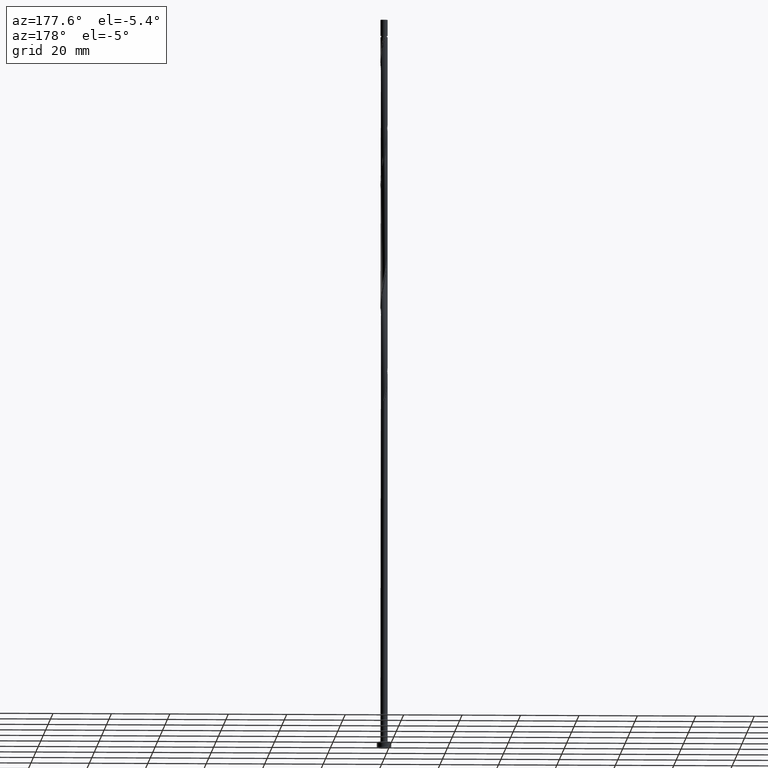
[diagram: clean part render]
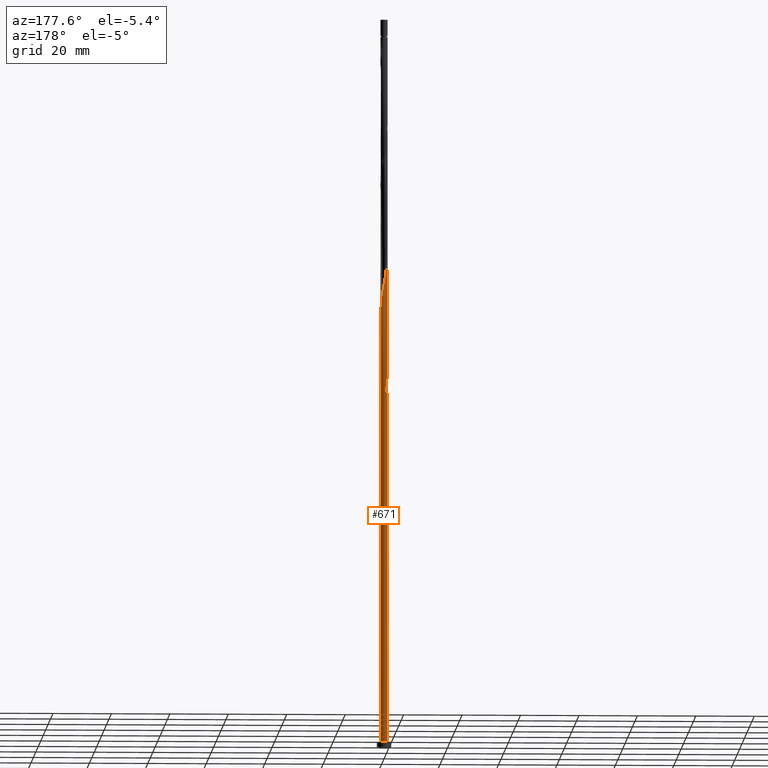
[diagram: same view with one face highlighted and labeled with its STEP entity id]
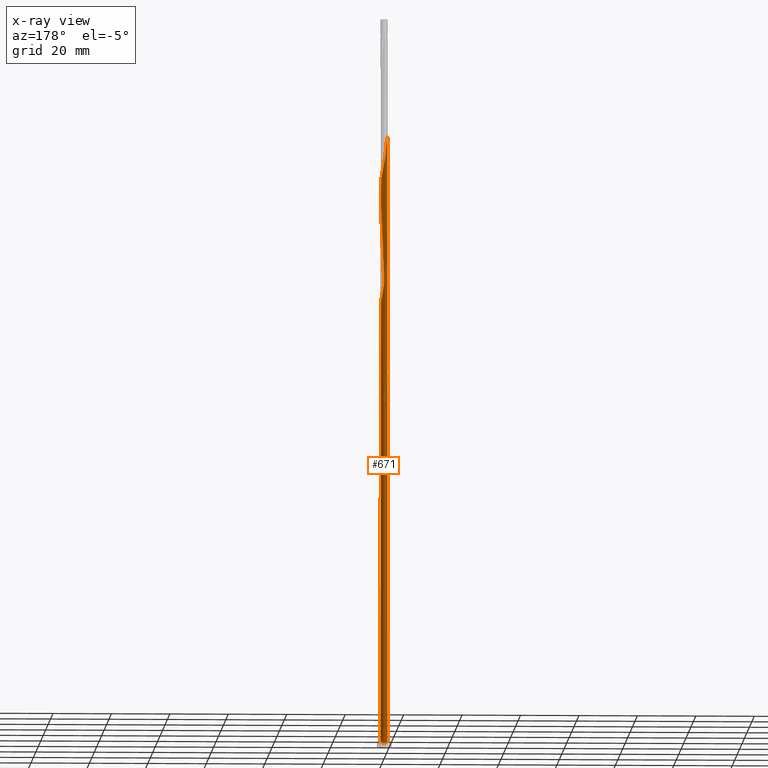
[diagram: x-ray of the same camera — body ghosted, the highlighted face saturated]
A machine part, auxiliary view. The second image highlights one B-rep face of the part: STEP entity #671.
The next image is the same camera in x-ray: the body ghosted, the highlighted face saturated — about 0% of this face is hidden behind the body in this view.
In plain terms, the highlighted cylindrical surface (bore or boss wall) has radius 1.25 mm, axis along (-0, -0, -1).
Its self-contained STEP definition (entity closure, byte-faithful):
#8 = CARTESIAN_POINT ( 'NONE',  ( 1.209097744789172868, -0.3515950037838740383, 188.7788032454643883 ) ) ;
#14 = ORIENTED_EDGE ( 'NONE', *, *, #330, .F. ) ;
#17 = CARTESIAN_POINT ( 'NONE',  ( -0.5346804163773583030, 1.129874706479677471, 204.0031622198233094 ) ) ;
#26 = CARTESIAN_POINT ( 'NONE',  ( -1.149459557334894466, 0.4911646628692577510, 208.8108545275156303 ) ) ;
#34 = CARTESIAN_POINT ( 'NONE',  ( 0.7895402911624437303, -0.9690852019462100619, 143.1057263223874259 ) ) ;
#39 = CARTESIAN_POINT ( 'NONE',  ( 1.258105753662064119, -0.05202226198902464710, 190.3813673480285047 ) ) ;
#54 = EDGE_CURVE ( 'NONE', #996, #1596, #886, .T. ) ;
#62 = CARTESIAN_POINT ( 'NONE',  ( 0.5346804163773579699, -1.129874706479677915, 183.1698288864900519 ) ) ;
#74 = CARTESIAN_POINT ( 'NONE',  ( 0.2032908520837055921, 1.242662155454621997, 158.3300852967464323 ) ) ;
#86 = CARTESIAN_POINT ( 'NONE',  ( 1.186085250128970925, 0.3945906479207273998, 151.1185468352079511 ) ) ;
#91 = CARTESIAN_POINT ( 'NONE',  ( -0.7574990085993095201, 1.005848723770680131, 124.6762391429003145 ) ) ;
#94 = CARTESIAN_POINT ( 'NONE',  ( -1.209097744789172868, 0.3515950037838733166, 167.9454699121311023 ) ) ;
#96 = CARTESIAN_POINT ( 'NONE',  ( 0.000000000000000000, 0.000000000000000000, 2.000000000000000000 ) ) ;
#104 = CARTESIAN_POINT ( 'NONE',  ( 0.2487468592766569064, -1.225000000000000755, 181.5672647839259639 ) ) ;
#124 = CARTESIAN_POINT ( 'NONE',  ( 0.9072085382940975329, -0.8732176539593852205, 185.5736750403362407 ) ) ;
#136 = CARTESIAN_POINT ( 'NONE',  ( -1.186085250128970925, -0.3945906479207278994, 130.2852135018746367 ) ) ;
#152 = CARTESIAN_POINT ( 'NONE',  ( -1.209097744789172868, 0.3515950037838733166, 209.6121365787977595 ) ) ;
#170 = CARTESIAN_POINT ( 'NONE',  ( -1.250000000000001332, 1.301166652395880232E-15, 128.1560095747007040 ) ) ;
#183 = CARTESIAN_POINT ( 'NONE',  ( -1.209097744789172868, 0.3515950037838733166, 126.2788032454643883 ) ) ;
#185 = AXIS2_PLACEMENT_3D ( 'NONE', #1639, #1659, #213 ) ;
#190 = CARTESIAN_POINT ( 'NONE',  ( -0.5346804163773583030, 1.129874706479677471, 120.6698288864900377 ) ) ;
#200 = CARTESIAN_POINT ( 'NONE',  ( -1.057188045353649741, -0.6669733403677636785, 173.5544442711054103 ) ) ;
#209 = CARTESIAN_POINT ( 'NONE',  ( 0.6261355586025928455, 1.081875345062185190, 155.9262391429002435 ) ) ;
#210 = CIRCLE ( 'NONE', #1312, 1.250000000000000000 ) ;
#213 = DIRECTION ( 'NONE',  ( -1.000000000000000000, 0.000000000000000000, 0.000000000000000000 ) ) ;
#223 = CARTESIAN_POINT ( 'NONE',  ( -0.6261355586025916242, 1.081875345062184746, 123.8749570916182705 ) ) ;
#225 = CARTESIAN_POINT ( 'NONE',  ( -0.6261355586025928455, -1.081875345062185190, 176.7595724762336147 ) ) ;
#230 = CARTESIAN_POINT ( 'NONE',  ( -0.8668509141045642741, 0.9005939666220742490, 125.4775211941824011 ) ) ;
#233 = CARTESIAN_POINT ( 'NONE',  ( 0.9985149540873566876, -0.7519759879570139249, 144.7082904249515707 ) ) ;
#241 = LINE ( 'NONE', #1164, #477 ) ;
#242 = CARTESIAN_POINT ( 'NONE',  ( -1.250000000000001332, 7.178850495977267118E-16, 211.4893429080340184 ) ) ;
#248 = DIRECTION ( 'NONE',  ( -0.000000000000000000, -0.000000000000000000, -1.000000000000000000 ) ) ;
#268 = CARTESIAN_POINT ( 'NONE',  ( -1.057188045353649741, -0.6669733403677636785, 131.8877776044387531 ) ) ;
#277 = VERTEX_POINT ( 'NONE', #977 ) ;
#280 =( BOUNDED_CURVE ( )  B_SPLINE_CURVE ( 2, ( #567, #915, #190, #309, #1465, #1084, #833, #1618, #282, #183, #699, #686, #170 ),
 .UNSPECIFIED., .F., .T. ) 
 B_SPLINE_CURVE_WITH_KNOTS ( ( 3, 2, 2, 2, 2, 2, 3 ),
 ( 0.000000000000000000, 0.009615384615384582959, 0.01923076923076927347, 0.02884615384615385469, 0.03846153846153842898, 0.04807692307692312816, 0.05452716259738321636 ),
 .UNSPECIFIED. ) 
 CURVE ( )  GEOMETRIC_REPRESENTATION_ITEM ( )  RATIONAL_B_SPLINE_CURVE ( ( 0.9090909090909714552, 0.9024626128164744410, 0.9090909090909714552, 0.9024626128164744410, 0.9090909090909714552, 0.9024626128164744410, 0.9090909090909714552, 0.9024626128164744410, 0.9090909090909714552, 0.9024626128164744410, 0.9090909090909714552, 0.9046444828383313208, 0.9061636035683259260 ) ) 
 REPRESENTATION_ITEM ( '' )  );
#282 = CARTESIAN_POINT ( 'NONE',  ( -1.149459557334894466, 0.4911646628692577510, 125.4775211941823443 ) ) ;
#292 = CARTESIAN_POINT ( 'NONE',  ( -1.089821369880616730, 0.6307343219546426294, 208.0095724762336431 ) ) ;
#309 = CARTESIAN_POINT ( 'NONE',  ( -0.6718720440307903718, 1.064952749933035570, 121.4711109377721101 ) ) ;
#321 = CARTESIAN_POINT ( 'NONE',  ( -0.7574990085993109634, -1.005848723770680797, 175.9582904249516560 ) ) ;
#329 = CARTESIAN_POINT ( 'NONE',  ( 0.9762028196098204713, 0.7953392094734685891, 153.5223929890541683 ) ) ;
#330 = EDGE_CURVE ( 'NONE', #1596, #277, #241, .T. ) ;
#347 = CARTESIAN_POINT ( 'NONE',  ( -1.258105753662064119, 0.05202226198902477200, 169.5480340146952472 ) ) ;
#357 = CARTESIAN_POINT ( 'NONE',  ( 1.233997229160462394, 0.2505738245793974750, 150.3172647839259639 ) ) ;
#373 = LINE ( 'NONE', #904, #674 ) ;
#401 = CARTESIAN_POINT ( 'NONE',  ( -0.3490314803447900349, -1.200282060904155790, 136.6954699121310739 ) ) ;
#444 = ORIENTED_EDGE ( 'NONE', *, *, #1436, .F. ) ;
#445 = CARTESIAN_POINT ( 'NONE',  ( -0.9072085382940975329, 0.8732176539593852205, 206.4070083736695551 ) ) ;
#456 = CIRCLE ( 'NONE', #868, 1.250000000000000000 ) ;
#458 = CYLINDRICAL_SURFACE ( 'NONE', #185, 1.250000000000000000 ) ;
#475 = CARTESIAN_POINT ( 'NONE',  ( -1.186085250128970925, -0.3945906479207278994, 171.9518801685413791 ) ) ;
#477 = VECTOR ( 'NONE', #1580, 1000.000000000000000 ) ;
#481 = CARTESIAN_POINT ( 'NONE',  ( -0.3490314803447894243, 1.200282060904154902, 122.2723929890541967 ) ) ;
#483 = CARTESIAN_POINT ( 'NONE',  ( 1.258105753662064119, -0.05202226198902464710, 148.7147006813618191 ) ) ;
#493 = CARTESIAN_POINT ( 'NONE',  ( -0.8668509141045653843, -0.9005939666220746931, 175.1570083736694983 ) ) ;
#509 = CARTESIAN_POINT ( 'NONE',  ( -1.246051491411263479, -0.09927578129518627170, 128.6826493993105203 ) ) ;
#515 = CARTESIAN_POINT ( 'NONE',  ( -1.186085250128969593, 0.3945906479207281214, 128.6826493993105771 ) ) ;
#535 = CARTESIAN_POINT ( 'NONE',  ( -1.250000000000001332, 1.301166652395880232E-15, 128.1560095747007040 ) ) ;
#545 = CARTESIAN_POINT ( 'NONE',  ( 0.6261355586025928455, 1.081875345062185190, 197.5929058095669575 ) ) ;
#565 = CARTESIAN_POINT ( 'NONE',  ( -1.250000000000001554, 0.1015705481713052860, 210.9496421706857348 ) ) ;
#567 = CARTESIAN_POINT ( 'NONE',  ( -0.2487468592766567677, 1.225000000000000755, 119.0672647839259639 ) ) ;
#569 = CARTESIAN_POINT ( 'NONE',  ( 0.9072085382940975329, -0.8732176539593852205, 143.9070083736695835 ) ) ;
#573 = CARTESIAN_POINT ( 'NONE',  ( 0.3490314803447906455, 1.200282060904155568, 199.1954699121310455 ) ) ;
#590 = CARTESIAN_POINT ( 'NONE',  ( -0.6718720440307903718, 1.064952749933035570, 163.1377776044387531 ) ) ;
#600 = CARTESIAN_POINT ( 'NONE',  ( 0.3490314803447906455, 1.200282060904155568, 157.5288032454643883 ) ) ;
#607 = CARTESIAN_POINT ( 'NONE',  ( 0.7574990085993114075, 1.005848723770680131, 155.1249570916182847 ) ) ;
#609 = CARTESIAN_POINT ( 'NONE',  ( -1.250000000000000000, 0.000000000000000000, 2.000000000000000000 ) ) ;
#612 = CARTESIAN_POINT ( 'NONE',  ( -0.4947721086058738393, 1.157901966353689138, 123.0736750403362123 ) ) ;
#617 = CARTESIAN_POINT ( 'NONE',  ( -0.4947721086058747275, -1.157901966353690248, 177.5608545275156587 ) ) ;
#639 = CARTESIAN_POINT ( 'NONE',  ( -1.250000000000001554, -0.04971641292096036502, 128.4201804903336495 ) ) ;
#663 = CARTESIAN_POINT ( 'NONE',  ( -0.7574990085993109634, -1.005848723770680797, 134.2916237582849703 ) ) ;
#668 = CARTESIAN_POINT ( 'NONE',  ( -1.233601749225618605, 0.2018086328864491519, 210.4134186300798035 ) ) ;
#671 = ADVANCED_FACE ( 'NONE', ( #1273 ), #458, .T. ) ;
#674 = VECTOR ( 'NONE', #248, 1000.000000000000000 ) ;
#677 = CARTESIAN_POINT ( 'NONE',  ( 1.233601749225618605, -0.2018086328864492629, 189.5800852967464039 ) ) ;
#684 = CARTESIAN_POINT ( 'NONE',  ( 1.246051491411263479, 0.09927578129518584149, 191.1826493993105487 ) ) ;
#686 = CARTESIAN_POINT ( 'NONE',  ( -1.250000000000001332, 0.1015705481713070207, 127.6163088373523777 ) ) ;
#694 = CARTESIAN_POINT ( 'NONE',  ( 0.5346804163773579699, -1.129874706479677915, 141.5031622198233379 ) ) ;
#699 = CARTESIAN_POINT ( 'NONE',  ( -1.233601749225618605, 0.2018086328864491519, 127.0800852967464607 ) ) ;
#737 = CARTESIAN_POINT ( 'NONE',  ( 1.138173271097479677, 0.5386074712620585458, 151.9198288864900803 ) ) ;
#738 = VERTEX_POINT ( 'NONE', #609 ) ;
#746 = CARTESIAN_POINT ( 'NONE',  ( 0.4947721086058747275, 1.157901966353690248, 156.7275211941823727 ) ) ;
#749 = ORIENTED_EDGE ( 'NONE', *, *, #1478, .T. ) ;
#755 = CARTESIAN_POINT ( 'NONE',  ( -0.2032908520837054811, -1.242662155454621997, 179.1634186300798035 ) ) ;
#791 = CARTESIAN_POINT ( 'NONE',  ( -0.9762028196098199162, -0.7953392094734692552, 132.6890596557207971 ) ) ;
#807 = CARTESIAN_POINT ( 'NONE',  ( 1.233997229160462394, 0.2505738245793974750, 191.9839314505926495 ) ) ;
#813 = ORIENTED_EDGE ( 'NONE', *, *, #948, .T. ) ;
#827 = CARTESIAN_POINT ( 'NONE',  ( 0.2487468592766569064, -1.225000000000000755, 139.9005981172592499 ) ) ;
#831 = CARTESIAN_POINT ( 'NONE',  ( 1.149459557334894466, -0.4911646628692577510, 187.9775211941823443 ) ) ;
#833 = CARTESIAN_POINT ( 'NONE',  ( -0.9985149540873569096, 0.7519759879570138139, 123.8749570916182705 ) ) ;
#840 = CARTESIAN_POINT ( 'NONE',  ( 0.8668509141045653843, 0.9005939666220745821, 195.9903417070028695 ) ) ;
#858 = CARTESIAN_POINT ( 'NONE',  ( 1.057188045353649519, 0.6669733403677640116, 152.7211109377720675 ) ) ;
#868 = AXIS2_PLACEMENT_3D ( 'NONE', #1536, #1698, #1001 ) ;
#869 = CARTESIAN_POINT ( 'NONE',  ( 1.246051491411263479, 0.09927578129518584149, 149.5159827326439199 ) ) ;
#879 = CARTESIAN_POINT ( 'NONE',  ( -1.233997229160462394, -0.2505738245793976415, 171.1505981172592499 ) ) ;
#886 =( BOUNDED_CURVE ( )  B_SPLINE_CURVE ( 2, ( #535, #639, #509, #1568, #136, #1187, #268, #791, #1322, #663, #1195, #1719, #401, #931, #1351, #1219, #827, #1355, #694, #1226, #34, #569, #233, #1013, #1150, #1675, #1263, #483, #869, #357, #86, #737, #858, #329, #1122, #607, #209, #746, #600, #74, #1270, #1141, #1286, #1530, #1131, #590, #1278, #1666, #981, #1656, #1510, #94, #1004, #347, #1500, #879, #475, #888, #200, #1409, #493, #321, #225, #617, #1539, #755, #1382, #1113, #104, #1250, #62, #1647, #1394, #124, #1450, #1490, #831, #8, #677, #39, #684, #807, #1336, #1222, #944, #1480, #840, #1359, #545, #1209, #573, #1216, #1099, #953, #1625, #1608, #17, #1082, #1347, #445, #1067, #292, #26, #152, #668, #565, #1090 ),
 .UNSPECIFIED., .F., .T. ) 
 B_SPLINE_CURVE_WITH_KNOTS ( ( 3, 2, 2, 2, 2, 2, 2, 2, 2, 2, 2, 2, 2, 2, 2, 2, 2, 2, 2, 2, 2, 2, 2, 2, 2, 2, 2, 2, 2, 2, 2, 2, 2, 2, 2, 2, 2, 2, 2, 2, 2, 2, 2, 2, 2, 2, 2, 2, 2, 2, 2, 2, 2, 3 ),
 ( 0.05452716259738321636, 0.05769230769230770939, 0.06730769230769229061, 0.07692307692307687184, 0.08653846153846156408, 0.09615384615384614531, 0.1057692307692307265, 0.1153846153846154188, 0.1250000000000000000, 0.1346153846153845812, 0.1442307692307692735, 0.1538461538461538547, 0.1634615384615384359, 0.1730769230769231282, 0.1826923076923077094, 0.1923076923076922906, 0.2019230769230768718, 0.2115384615384615641, 0.2211538461538461453, 0.2307692307692307265, 0.2403846153846154188, 0.2500000000000000000, 0.2596153846153845812, 0.2692307692307692735, 0.2788461538461538547, 0.2884615384615384359, 0.2980769230769231282, 0.3076923076923077094, 0.3173076923076922906, 0.3269230769230768718, 0.3365384615384615641, 0.3461538461538461453, 0.3557692307692307265, 0.3653846153846154188, 0.3750000000000000000, 0.3846153846153845812, 0.3942307692307692735, 0.4038461538461538547, 0.4134615384615384359, 0.4230769230769231282, 0.4326923076923077094, 0.4423076923076922906, 0.4519230769230768718, 0.4615384615384615641, 0.4711538461538461453, 0.4807692307692307265, 0.4903846153846154188, 0.5000000000000000000, 0.5096153846153845812, 0.5192307692307691624, 0.5288461538461538547, 0.5384615384615384359, 0.5480769230769231282, 0.5545271625973833274 ),
 .UNSPECIFIED. ) 
 CURVE ( )  GEOMETRIC_REPRESENTATION_ITEM ( )  RATIONAL_B_SPLINE_CURVE ( ( 0.9061636035683259260, 0.9069090390691145753, 0.9090909090909714552, 0.9024626128164744410, 0.9090909090909714552, 0.9024626128164744410, 0.9090909090909714552, 0.9024626128164744410, 0.9090909090909714552, 0.9024626128164744410, 0.9090909090909714552, 0.9024626128164744410, 0.9090909090909714552, 0.9024626128164744410, 0.9090909090909714552, 0.9024626128164744410, 0.9090909090909714552, 0.9024626128164744410, 0.9090909090909714552, 0.9024626128164744410, 0.9090909090909714552, 0.9024626128164744410, 0.9090909090909714552, 0.9024626128164744410, 0.9090909090909714552, 0.9024626128164744410, 0.9090909090909714552, 0.9024626128164744410, 0.9090909090909714552, 0.9024626128164744410, 0.9090909090909714552, 0.9024626128164744410, 0.9090909090909714552, 0.9024626128164744410, 0.9090909090909714552, 0.9024626128164744410, 0.9090909090909714552, 0.9024626128164744410, 0.9090909090909714552, 0.9024626128164744410, 0.9090909090909714552, 0.9024626128164744410, 0.9090909090909714552, 0.9024626128164744410, 0.9090909090909714552, 0.9024626128164744410, 0.9090909090909714552, 0.9024626128164744410, 0.9090909090909714552, 0.9024626128164744410, 0.9090909090909714552, 0.9024626128164744410, 0.9090909090909714552, 0.9024626128164744410, 0.9090909090909714552, 0.9024626128164744410, 0.9090909090909714552, 0.9024626128164744410, 0.9090909090909714552, 0.9024626128164744410, 0.9090909090909714552, 0.9024626128164744410, 0.9090909090909714552, 0.9024626128164744410, 0.9090909090909714552, 0.9024626128164744410, 0.9090909090909714552, 0.9024626128164744410, 0.9090909090909714552, 0.9024626128164744410, 0.9090909090909714552, 0.9024626128164744410, 0.9090909090909714552, 0.9024626128164744410, 0.9090909090909714552, 0.9024626128164744410, 0.9090909090909714552, 0.9024626128164744410, 0.9090909090909714552, 0.9024626128164744410, 0.9090909090909714552, 0.9024626128164744410, 0.9090909090909714552, 0.9024626128164744410, 0.9090909090909714552, 0.9024626128164744410, 0.9090909090909714552, 0.9024626128164744410, 0.9090909090909714552, 0.9024626128164744410, 0.9090909090909714552, 0.9024626128164744410, 0.9090909090909714552, 0.9024626128164744410, 0.9090909090909714552, 0.9024626128164744410, 0.9090909090909714552, 0.9024626128164744410, 0.9090909090909714552, 0.9024626128164744410, 0.9090909090909714552, 0.9024626128164744410, 0.9090909090909714552, 0.9024626128164744410, 0.9090909090909714552, 0.9046444828383310988, 0.9061636035683260371 ) ) 
 REPRESENTATION_ITEM ( '' )  );
#888 = CARTESIAN_POINT ( 'NONE',  ( -1.138173271097479233, -0.5386074712620589899, 172.7531622198233947 ) ) ;
#890 = ORIENTED_EDGE ( 'NONE', *, *, #54, .F. ) ;
#897 = EDGE_CURVE ( 'NONE', #738, #1495, #950, .T. ) ;
#904 = CARTESIAN_POINT ( 'NONE',  ( -1.250000000000000000, 0.000000000000000000, 250.0000000000000000 ) ) ;
#915 = CARTESIAN_POINT ( 'NONE',  ( -0.3974887887239264006, 1.194796663026321148, 119.8685468352080363 ) ) ;
#931 = CARTESIAN_POINT ( 'NONE',  ( -0.2032908520837054811, -1.242662155454621997, 137.4967519634131463 ) ) ;
#944 = CARTESIAN_POINT ( 'NONE',  ( 1.057188045353649519, 0.6669733403677640116, 194.3877776044387531 ) ) ;
#948 = EDGE_CURVE ( 'NONE', #1495, #738, #210, .T. ) ;
#950 = CIRCLE ( 'NONE', #1085, 1.250000000000000000 ) ;
#953 = CARTESIAN_POINT ( 'NONE',  ( -0.1000049298293870792, 1.255203336973681472, 201.5993160659772627 ) ) ;
#976 = EDGE_CURVE ( 'NONE', #1133, #996, #280, .T. ) ;
#977 = CARTESIAN_POINT ( 'NONE',  ( -1.250000000000000444, -8.637054502972695292E-16, 130.8118533264844814 ) ) ;
#981 = CARTESIAN_POINT ( 'NONE',  ( -0.9985149540873569096, 0.7519759879570138139, 165.5416237582848851 ) ) ;
#984 = VERTEX_POINT ( 'NONE', #1231 ) ;
#996 = VERTEX_POINT ( 'NONE', #1477 ) ;
#1001 = DIRECTION ( 'NONE',  ( 0.000000000000000000, 1.000000000000000000, -2.220446049250313081E-14 ) ) ;
#1004 = CARTESIAN_POINT ( 'NONE',  ( -1.233601749225618605, 0.2018086328864491519, 168.7467519634131463 ) ) ;
#1007 = DIRECTION ( 'NONE',  ( 1.000000000000000000, 0.000000000000000000, 0.000000000000000000 ) ) ;
#1013 = CARTESIAN_POINT ( 'NONE',  ( 1.089821369880616508, -0.6307343219546429625, 145.5095724762336715 ) ) ;
#1034 = CARTESIAN_POINT ( 'NONE',  ( 0.2487468592766572673, 1.224999999999999867, 119.0672647839259639 ) ) ;
#1067 = CARTESIAN_POINT ( 'NONE',  ( -0.9985149540873569096, 0.7519759879570138139, 207.2082904249515991 ) ) ;
#1082 = CARTESIAN_POINT ( 'NONE',  ( -0.6718720440307903718, 1.064952749933035570, 204.8044442711054671 ) ) ;
#1084 = CARTESIAN_POINT ( 'NONE',  ( -0.9072085382940975329, 0.8732176539593852205, 123.0736750403362407 ) ) ;
#1085 = AXIS2_PLACEMENT_3D ( 'NONE', #96, #1693, #1007 ) ;
#1090 = CARTESIAN_POINT ( 'NONE',  ( -1.250000000000001332, 7.178850495977267118E-16, 211.4893429080340184 ) ) ;
#1092 = DIRECTION ( 'NONE',  ( 0.000000000000000000, 0.000000000000000000, 1.000000000000000000 ) ) ;
#1098 = ORIENTED_EDGE ( 'NONE', *, *, #1631, .F. ) ;
#1099 = CARTESIAN_POINT ( 'NONE',  ( 0.05164296112715983239, 1.248932746214151290, 200.7980340146951335 ) ) ;
#1105 =( BOUNDED_CURVE ( )  B_SPLINE_CURVE ( 2, ( #1138, #1432, #1284, #1276, #515, #1663, #1545, #1672, #230, #91, #223, #612, #481, #1174, #1147, #1679, #1034 ),
 .UNSPECIFIED., .F., .T. ) 
 B_SPLINE_CURVE_WITH_KNOTS ( ( 3, 2, 2, 2, 2, 2, 2, 2, 3 ),
 ( 0.9295271625973833274, 0.9326923076923077094, 0.9423076923076922906, 0.9519230769230768718, 0.9615384615384615641, 0.9711538461538461453, 0.9807692307692307265, 0.9903846153846154188, 1.000000000000000000 ),
 .UNSPECIFIED. ) 
 CURVE ( )  GEOMETRIC_REPRESENTATION_ITEM ( )  RATIONAL_B_SPLINE_CURVE ( ( 0.9061636035683214851, 0.9069090390691101344, 0.9090909090909667922, 0.9024626128164701111, 0.9090909090909667922, 0.9024626128164701111, 0.9090909090909667922, 0.9024626128164701111, 0.9090909090909667922, 0.9024626128164701111, 0.9090909090909667922, 0.9024626128164701111, 0.9090909090909667922, 0.9024626128164701111, 0.9090909090909667922, 0.9024626128164701111, 0.9090909090909667922 ) ) 
 REPRESENTATION_ITEM ( '' )  );
#1113 = CARTESIAN_POINT ( 'NONE',  ( 0.1000049298293872874, -1.255203336973681472, 180.7659827326439483 ) ) ;
#1122 = CARTESIAN_POINT ( 'NONE',  ( 0.8668509141045653843, 0.9005939666220745821, 154.3236750403362123 ) ) ;
#1131 = CARTESIAN_POINT ( 'NONE',  ( -0.5346804163773583030, 1.129874706479677471, 162.3364955531566807 ) ) ;
#1133 = VERTEX_POINT ( 'NONE', #1716 ) ;
#1138 = CARTESIAN_POINT ( 'NONE',  ( -1.250000000000000444, -8.637054502972695292E-16, 130.8118533264844814 ) ) ;
#1141 = CARTESIAN_POINT ( 'NONE',  ( -0.1000049298293870792, 1.255203336973681472, 159.9326493993106055 ) ) ;
#1147 = CARTESIAN_POINT ( 'NONE',  ( -0.05164296112715841686, 1.248932746214149958, 120.6698288864900661 ) ) ;
#1150 = CARTESIAN_POINT ( 'NONE',  ( 1.149459557334894466, -0.4911646628692577510, 146.3108545275156587 ) ) ;
#1164 = CARTESIAN_POINT ( 'NONE',  ( -1.250000000000000000, 0.000000000000000000, 250.0000000000000000 ) ) ;
#1174 = CARTESIAN_POINT ( 'NONE',  ( -0.2032908520837046762, 1.242662155454620887, 121.4711109377721101 ) ) ;
#1187 = CARTESIAN_POINT ( 'NONE',  ( -1.138173271097479233, -0.5386074712620589899, 131.0864955531567091 ) ) ;
#1195 = CARTESIAN_POINT ( 'NONE',  ( -0.6261355586025928455, -1.081875345062185190, 135.0929058095669859 ) ) ;
#1200 = ORIENTED_EDGE ( 'NONE', *, *, #976, .F. ) ;
#1209 = CARTESIAN_POINT ( 'NONE',  ( 0.4947721086058747275, 1.157901966353690248, 198.3941878608490867 ) ) ;
#1216 = CARTESIAN_POINT ( 'NONE',  ( 0.2032908520837055921, 1.242662155454621997, 199.9967519634131179 ) ) ;
#1219 = CARTESIAN_POINT ( 'NONE',  ( 0.1000049298293872874, -1.255203336973681472, 139.0993160659772627 ) ) ;
#1222 = CARTESIAN_POINT ( 'NONE',  ( 1.138173271097479677, 0.5386074712620585458, 193.5864955531567091 ) ) ;
#1226 = CARTESIAN_POINT ( 'NONE',  ( 0.6718720440307898167, -1.064952749933035570, 142.3044442711054103 ) ) ;
#1231 = CARTESIAN_POINT ( 'NONE',  ( 0.2487468592766572950, 1.224999999999999867, 119.0672647839259639 ) ) ;
#1238 = ORIENTED_EDGE ( 'NONE', *, *, #1631, .T. ) ;
#1250 = CARTESIAN_POINT ( 'NONE',  ( 0.3974887887239261230, -1.194796663026321148, 182.3685468352079795 ) ) ;
#1263 = CARTESIAN_POINT ( 'NONE',  ( 1.233601749225618605, -0.2018086328864492629, 147.9134186300798035 ) ) ;
#1270 = CARTESIAN_POINT ( 'NONE',  ( 0.05164296112715983239, 1.248932746214151290, 159.1313673480285047 ) ) ;
#1273 = FACE_OUTER_BOUND ( 'NONE', #1683, .T. ) ;
#1276 = CARTESIAN_POINT ( 'NONE',  ( -1.233997229160461284, 0.2505738245793975860, 129.4839314505926495 ) ) ;
#1278 = CARTESIAN_POINT ( 'NONE',  ( -0.7895402911624439524, 0.9690852019462100619, 163.9390596557207687 ) ) ;
#1284 = CARTESIAN_POINT ( 'NONE',  ( -1.246051491411262369, 0.09927578129518672967, 130.2852135018746651 ) ) ;
#1286 = CARTESIAN_POINT ( 'NONE',  ( -0.2487468592766567677, 1.225000000000000755, 160.7339314505925927 ) ) ;
#1312 = AXIS2_PLACEMENT_3D ( 'NONE', #1349, #1092, #1338 ) ;
#1322 = CARTESIAN_POINT ( 'NONE',  ( -0.8668509141045653843, -0.9005939666220746931, 133.4903417070028695 ) ) ;
#1336 = CARTESIAN_POINT ( 'NONE',  ( 1.186085250128970925, 0.3945906479207273998, 192.7852135018746367 ) ) ;
#1338 = DIRECTION ( 'NONE',  ( 1.000000000000000000, 0.000000000000000000, 0.000000000000000000 ) ) ;
#1347 = CARTESIAN_POINT ( 'NONE',  ( -0.7895402911624439524, 0.9690852019462100619, 205.6057263223874827 ) ) ;
#1349 = CARTESIAN_POINT ( 'NONE',  ( 0.000000000000000000, 0.000000000000000000, 2.000000000000000000 ) ) ;
#1351 = CARTESIAN_POINT ( 'NONE',  ( -0.05164296112715909687, -1.248932746214151290, 138.2980340146951903 ) ) ;
#1355 = CARTESIAN_POINT ( 'NONE',  ( 0.3974887887239261230, -1.194796663026321148, 140.7018801685413791 ) ) ;
#1359 = CARTESIAN_POINT ( 'NONE',  ( 0.7574990085993114075, 1.005848723770680131, 196.7916237582849703 ) ) ;
#1382 = CARTESIAN_POINT ( 'NONE',  ( -0.05164296112715909687, -1.248932746214151290, 179.9647006813617907 ) ) ;
#1394 = CARTESIAN_POINT ( 'NONE',  ( 0.7895402911624437303, -0.9690852019462100619, 184.7723929890541115 ) ) ;
#1409 = CARTESIAN_POINT ( 'NONE',  ( -0.9762028196098199162, -0.7953392094734692552, 174.3557263223874543 ) ) ;
#1432 = CARTESIAN_POINT ( 'NONE',  ( -1.250000000000000222, 0.04971641292096252301, 130.5476824108515359 ) ) ;
#1436 = EDGE_CURVE ( 'NONE', #277, #984, #1105, .T. ) ;
#1450 = CARTESIAN_POINT ( 'NONE',  ( 0.9985149540873566876, -0.7519759879570139249, 186.3749570916182563 ) ) ;
#1465 = CARTESIAN_POINT ( 'NONE',  ( -0.7895402911624439524, 0.9690852019462100619, 122.2723929890541257 ) ) ;
#1477 = CARTESIAN_POINT ( 'NONE',  ( -1.250000000000001332, 1.301166652395880232E-15, 128.1560095747007040 ) ) ;
#1478 = EDGE_CURVE ( 'NONE', #1133, #984, #456, .T. ) ;
#1480 = CARTESIAN_POINT ( 'NONE',  ( 0.9762028196098204713, 0.7953392094734685891, 195.1890596557208255 ) ) ;
#1490 = CARTESIAN_POINT ( 'NONE',  ( 1.089821369880616508, -0.6307343219546429625, 187.1762391429003856 ) ) ;
#1495 = VERTEX_POINT ( 'NONE', #1528 ) ;
#1500 = CARTESIAN_POINT ( 'NONE',  ( -1.246051491411263479, -0.09927578129518627170, 170.3493160659772627 ) ) ;
#1510 = CARTESIAN_POINT ( 'NONE',  ( -1.149459557334894466, 0.4911646628692577510, 167.1441878608489162 ) ) ;
#1526 = ORIENTED_EDGE ( 'NONE', *, *, #897, .T. ) ;
#1528 = CARTESIAN_POINT ( 'NONE',  ( 1.250000000000000000, 0.000000000000000000, 2.000000000000000000 ) ) ;
#1530 = CARTESIAN_POINT ( 'NONE',  ( -0.3974887887239264006, 1.194796663026321148, 161.5352135018746651 ) ) ;
#1536 = CARTESIAN_POINT ( 'NONE',  ( 0.000000000000000000, 0.000000000000000000, 119.0672647839259923 ) ) ;
#1539 = CARTESIAN_POINT ( 'NONE',  ( -0.3490314803447900349, -1.200282060904155790, 178.3621365787976458 ) ) ;
#1545 = CARTESIAN_POINT ( 'NONE',  ( -1.057188045353647965, 0.6669733403677637895, 127.0800852967464749 ) ) ;
#1568 = CARTESIAN_POINT ( 'NONE',  ( -1.233997229160462394, -0.2505738245793976415, 129.4839314505926211 ) ) ;
#1580 = DIRECTION ( 'NONE',  ( -0.000000000000000000, -0.000000000000000000, -1.000000000000000000 ) ) ;
#1596 = VERTEX_POINT ( 'NONE', #242 ) ;
#1608 = CARTESIAN_POINT ( 'NONE',  ( -0.3974887887239264006, 1.194796663026321148, 203.2018801685413507 ) ) ;
#1618 = CARTESIAN_POINT ( 'NONE',  ( -1.089821369880616730, 0.6307343219546426294, 124.6762391429003145 ) ) ;
#1625 = CARTESIAN_POINT ( 'NONE',  ( -0.2487468592766567677, 1.225000000000000755, 202.4005981172592783 ) ) ;
#1631 = EDGE_CURVE ( 'NONE', #996, #738, #373, .T. ) ;
#1639 = CARTESIAN_POINT ( 'NONE',  ( 0.000000000000000000, 0.000000000000000000, 250.0000000000000000 ) ) ;
#1647 = CARTESIAN_POINT ( 'NONE',  ( 0.6718720440307898167, -1.064952749933035570, 183.9711109377721243 ) ) ;
#1656 = CARTESIAN_POINT ( 'NONE',  ( -1.089821369880616730, 0.6307343219546426294, 166.3429058095669859 ) ) ;
#1659 = DIRECTION ( 'NONE',  ( -0.000000000000000000, -0.000000000000000000, -1.000000000000000000 ) ) ;
#1663 = CARTESIAN_POINT ( 'NONE',  ( -1.138173271097478123, 0.5386074712620583238, 127.8813673480285189 ) ) ;
#1666 = CARTESIAN_POINT ( 'NONE',  ( -0.9072085382940975329, 0.8732176539593852205, 164.7403417070029263 ) ) ;
#1672 = CARTESIAN_POINT ( 'NONE',  ( -0.9762028196098183619, 0.7953392094734684781, 126.2788032454644167 ) ) ;
#1675 = CARTESIAN_POINT ( 'NONE',  ( 1.209097744789172868, -0.3515950037838740383, 147.1121365787977595 ) ) ;
#1679 = CARTESIAN_POINT ( 'NONE',  ( 0.1000049298293878564, 1.255203336973680139, 119.8685468352080079 ) ) ;
#1683 = EDGE_LOOP ( 'NONE', ( #14, #890, #1238, #1526, #813, #1098, #1200, #749, #444 ) ) ;
#1693 = DIRECTION ( 'NONE',  ( 0.000000000000000000, 0.000000000000000000, 1.000000000000000000 ) ) ;
#1698 = DIRECTION ( 'NONE',  ( -6.162975822039149125E-30, -2.775557561562890089E-14, -1.000000000000000000 ) ) ;
#1716 = CARTESIAN_POINT ( 'NONE',  ( -0.2487468592766567677, 1.225000000000000755, 119.0672647839259639 ) ) ;
#1719 = CARTESIAN_POINT ( 'NONE',  ( -0.4947721086058747275, -1.157901966353690248, 135.8941878608490867 ) ) ;